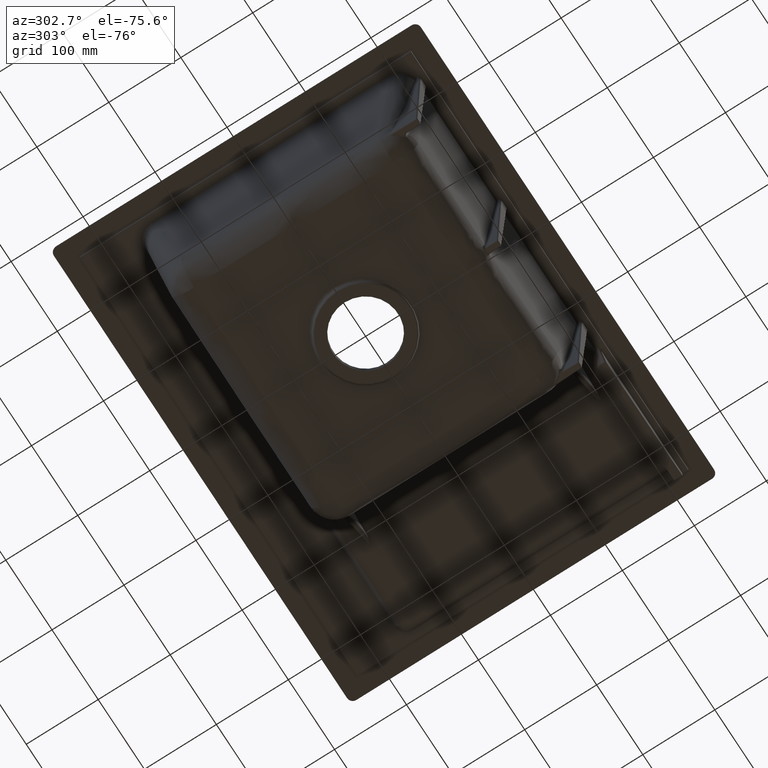
[diagram: clean part render]
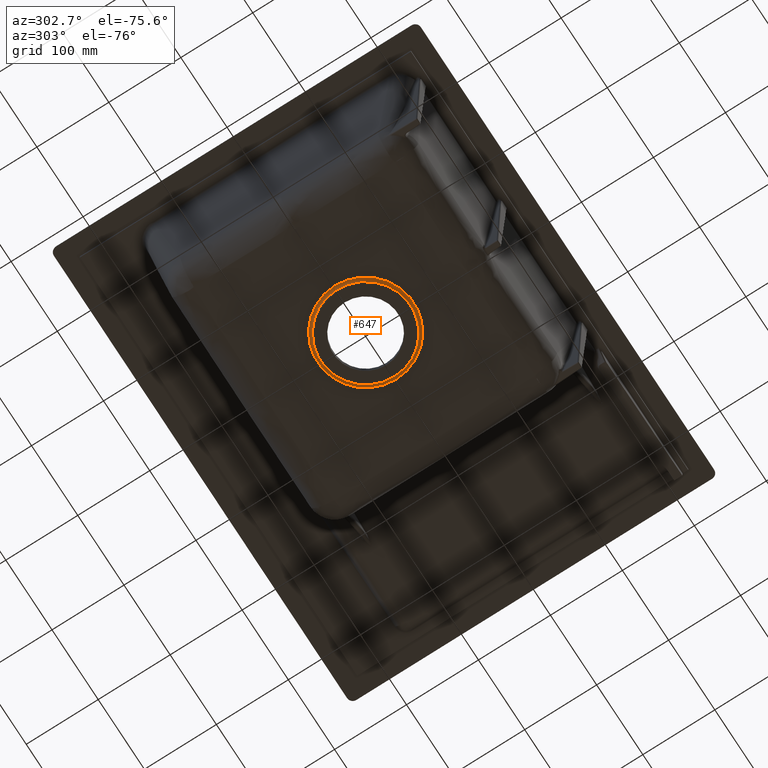
[diagram: same view with one face highlighted and labeled with its STEP entity id]
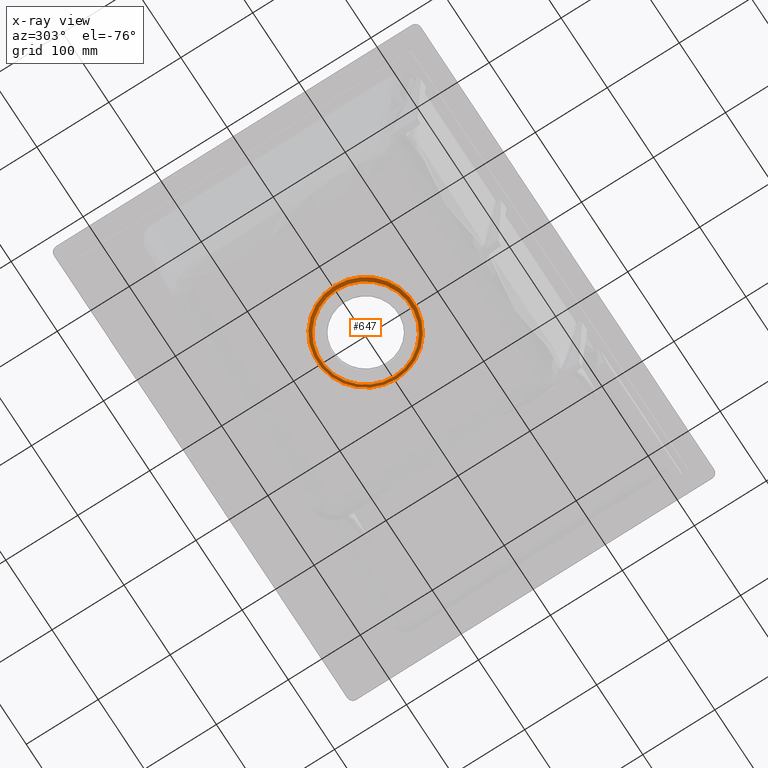
[diagram: x-ray of the same camera — body ghosted, the highlighted face saturated]
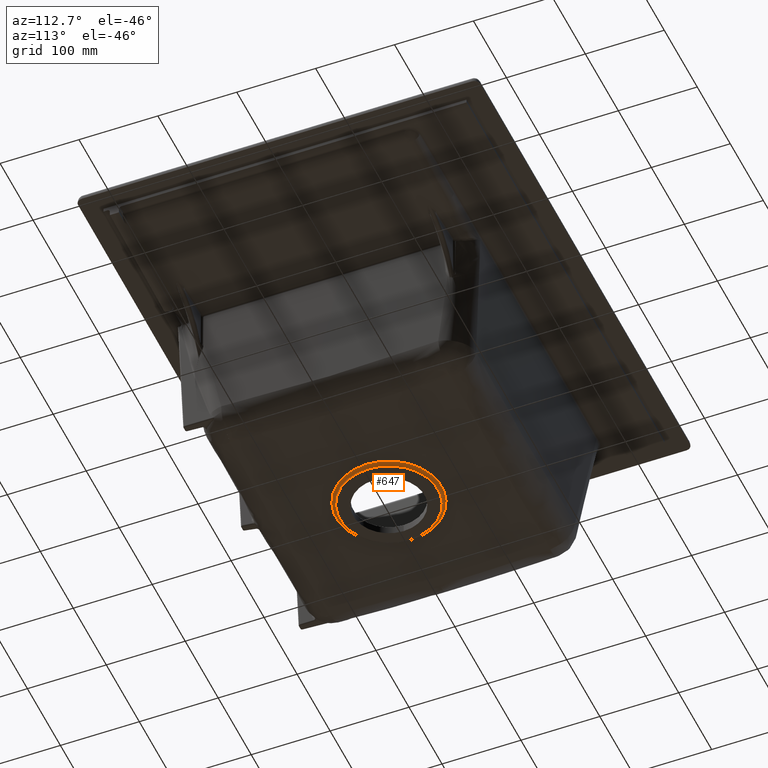
[diagram: same view with one face highlighted and labeled with its STEP entity id]
A machine part, auxiliary view. The second image highlights one B-rep face of the part: STEP entity #647.
The next image is the same camera in x-ray: the body ghosted, the highlighted face saturated — about 0% of this face is hidden behind the body in this view.
A second angle (auxiliary view) of the same face is appended — the face is thin or edge-on in the first view.
In plain terms, the highlighted toroidal blend (fillet) surface has major radius 67.1719 mm and minor (blend) radius 5 mm.
Its self-contained STEP definition (entity closure, byte-faithful):
#363=TOROIDAL_SURFACE('',#3933,67.1718536691421,5.);
#430=FACE_BOUND('',#1203,.T.);
#431=FACE_BOUND('',#1204,.T.);
#441=CIRCLE('',#3926,62.3661333174706);
#442=CIRCLE('',#3932,66.8230713004215);
#647=ADVANCED_FACE('',(#430,#431),#363,.F.);
#1203=EDGE_LOOP('',(#1590));
#1204=EDGE_LOOP('',(#1591));
#1590=ORIENTED_EDGE('',*,*,#3098,.F.);
#1591=ORIENTED_EDGE('',*,*,#3082,.T.);
#2731=VERTEX_POINT('',#7564);
#2744=VERTEX_POINT('',#7643);
#3082=EDGE_CURVE('',#2731,#2731,#441,.T.);
#3098=EDGE_CURVE('',#2744,#2744,#442,.T.);
#3926=AXIS2_PLACEMENT_3D('',#7563,#4259,#4260);
#3932=AXIS2_PLACEMENT_3D('',#7642,#4279,#4280);
#3933=AXIS2_PLACEMENT_3D('',#7644,#4281,#4282);
#4259=DIRECTION('',(0.,0.,1.));
#4260=DIRECTION('',(-1.,0.,0.));
#4279=DIRECTION('',(0.,0.,1.));
#4280=DIRECTION('',(1.,0.,0.));
#4281=DIRECTION('',(0.,0.,-1.));
#4282=DIRECTION('',(-1.,0.,0.));
#7563=CARTESIAN_POINT('',(-2.22044604925032E-13,0.,2.171858294401));
#7564=CARTESIAN_POINT('',(-62.3661333174712,0.,2.171858294401));
#7642=CARTESIAN_POINT('',(-2.22044604925032E-13,0.,5.77944236970249));
#7643=CARTESIAN_POINT('',(66.8230713004212,0.,5.77944236970249));
#7644=CARTESIAN_POINT('',(-2.22044604925032E-13,0.,0.791622118403501));